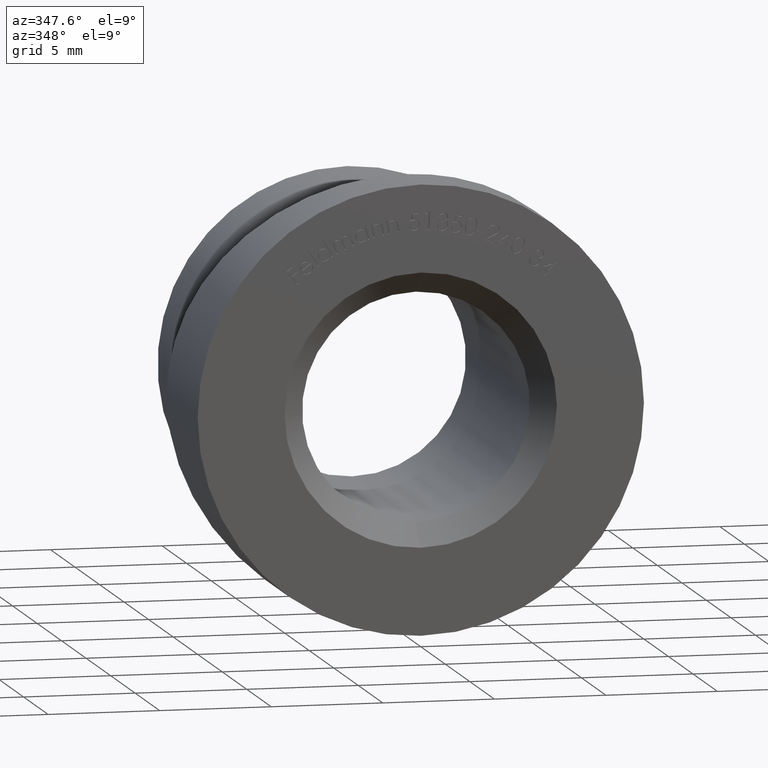
[diagram: clean part render]
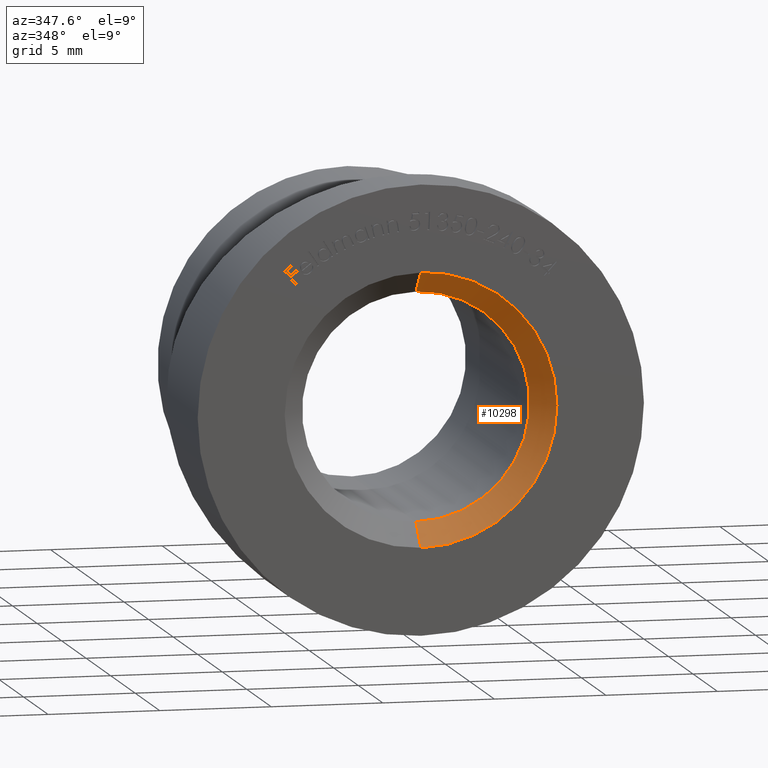
[diagram: same view with one face highlighted and labeled with its STEP entity id]
A machine part, auxiliary view. The second image highlights one B-rep face of the part: STEP entity #10298.
In plain terms, the highlighted conical surface has half-angle 45 deg.
Its self-contained STEP definition (entity closure, byte-faithful):
#25 = CARTESIAN_POINT ( 'NONE',  ( 0.0000000000000000000, 0.0000000000000000000, -6.099999999999994300 ) ) ;
#30 = ORIENTED_EDGE ( 'NONE', *, *, #5323, .T. ) ;
#328 = VERTEX_POINT ( 'NONE', #3257 ) ;
#763 = ORIENTED_EDGE ( 'NONE', *, *, #9405, .F. ) ;
#1398 = EDGE_CURVE ( 'NONE', #3858, #6602, #3785, .T. ) ;
#1557 = FACE_OUTER_BOUND ( 'NONE', #8039, .T. ) ;
#1932 = DIRECTION ( 'NONE',  ( 0.0000000000000000000, 0.0000000000000000000, 1.000000000000000000 ) ) ;
#2084 = DIRECTION ( 'NONE',  ( -0.0000000000000000000, -1.000000000000000000, -0.0000000000000000000 ) ) ;
#3114 = ORIENTED_EDGE ( 'NONE', *, *, #8276, .F. ) ;
#3257 = CARTESIAN_POINT ( 'NONE',  ( 0.0000000000000000000, 0.0000000000000000000, -6.099999999999994300 ) ) ;
#3775 = AXIS2_PLACEMENT_3D ( 'NONE', #4355, #2084, #4554 ) ;
#3785 = LINE ( 'NONE', #5016, #9958 ) ;
#3858 = VERTEX_POINT ( 'NONE', #8826 ) ;
#3978 = CARTESIAN_POINT ( 'NONE',  ( 7.470345474798847400E-016, 0.0000000000000000000, 6.099999999999994300 ) ) ;
#4355 = CARTESIAN_POINT ( 'NONE',  ( 0.0000000000000000000, 0.0000000000000000000, 0.0000000000000000000 ) ) ;
#4533 = VECTOR ( 'NONE', #10456, 999.9999999999998900 ) ;
#4554 = DIRECTION ( 'NONE',  ( 0.0000000000000000000, 0.0000000000000000000, -1.000000000000000000 ) ) ;
#5016 = CARTESIAN_POINT ( 'NONE',  ( 7.470345474798847400E-016, 0.0000000000000000000, 6.099999999999994300 ) ) ;
#5323 = EDGE_CURVE ( 'NONE', #11531, #328, #10654, .T. ) ;
#5492 = CARTESIAN_POINT ( 'NONE',  ( 0.0000000000000000000, 0.9999999999999974500, 0.0000000000000000000 ) ) ;
#6335 = CIRCLE ( 'NONE', #14194, 5.099999999999996100 ) ;
#6471 = CARTESIAN_POINT ( 'NONE',  ( 0.0000000000000000000, 0.0000000000000000000, 0.0000000000000000000 ) ) ;
#6602 = VERTEX_POINT ( 'NONE', #3978 ) ;
#7991 = CARTESIAN_POINT ( 'NONE',  ( 6.245698675651496900E-016, 0.9999999999999974500, -5.099999999999996100 ) ) ;
#8039 = EDGE_LOOP ( 'NONE', ( #11290, #763, #30, #3114 ) ) ;
#8276 = EDGE_CURVE ( 'NONE', #6602, #328, #13828, .T. ) ;
#8480 = DIRECTION ( 'NONE',  ( 8.659560562354937800E-017, -0.7071067811865472400, 0.7071067811865479100 ) ) ;
#8826 = CARTESIAN_POINT ( 'NONE',  ( 0.0000000000000000000, 0.9999999999999974500, 5.099999999999996100 ) ) ;
#9073 = CONICAL_SURFACE ( 'NONE', #3775, 6.099999999999994300, 0.7853981633974487200 ) ;
#9405 = EDGE_CURVE ( 'NONE', #11531, #3858, #6335, .T. ) ;
#9958 = VECTOR ( 'NONE', #8480, 999.9999999999998900 ) ;
#10298 = ADVANCED_FACE ( 'NONE', ( #1557 ), #9073, .F. ) ;
#10456 = DIRECTION ( 'NONE',  ( 0.0000000000000000000, -0.7071067811865472400, -0.7071067811865479100 ) ) ;
#10654 = LINE ( 'NONE', #25, #4533 ) ;
#11290 = ORIENTED_EDGE ( 'NONE', *, *, #1398, .F. ) ;
#11466 = DIRECTION ( 'NONE',  ( -0.0000000000000000000, -1.000000000000000000, -0.0000000000000000000 ) ) ;
#11531 = VERTEX_POINT ( 'NONE', #7991 ) ;
#12356 = DIRECTION ( 'NONE',  ( 0.0000000000000000000, 1.000000000000000000, 0.0000000000000000000 ) ) ;
#12535 = DIRECTION ( 'NONE',  ( 0.0000000000000000000, 0.0000000000000000000, 1.000000000000000000 ) ) ;
#13828 = CIRCLE ( 'NONE', #15065, 6.099999999999994300 ) ;
#14194 = AXIS2_PLACEMENT_3D ( 'NONE', #5492, #11466, #12535 ) ;
#15065 = AXIS2_PLACEMENT_3D ( 'NONE', #6471, #12356, #1932 ) ;